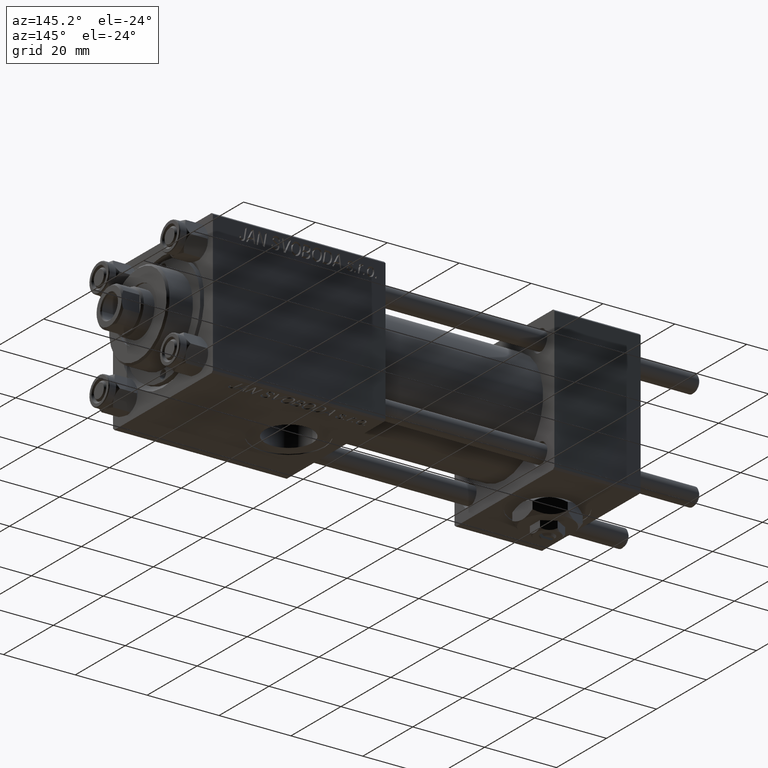
[diagram: clean part render]
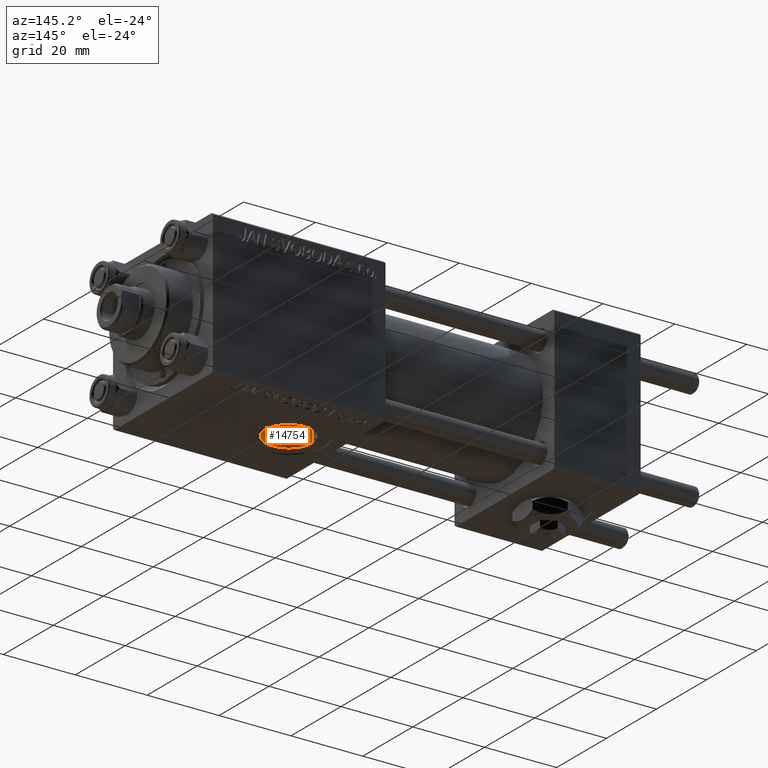
[diagram: same view with one face highlighted and labeled with its STEP entity id]
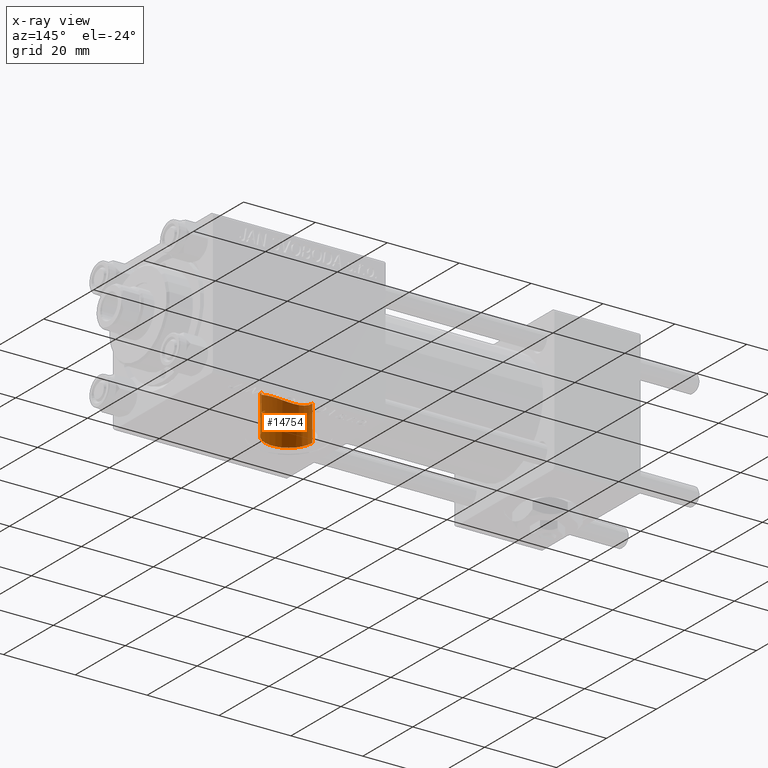
[diagram: x-ray of the same camera — body ghosted, the highlighted face saturated]
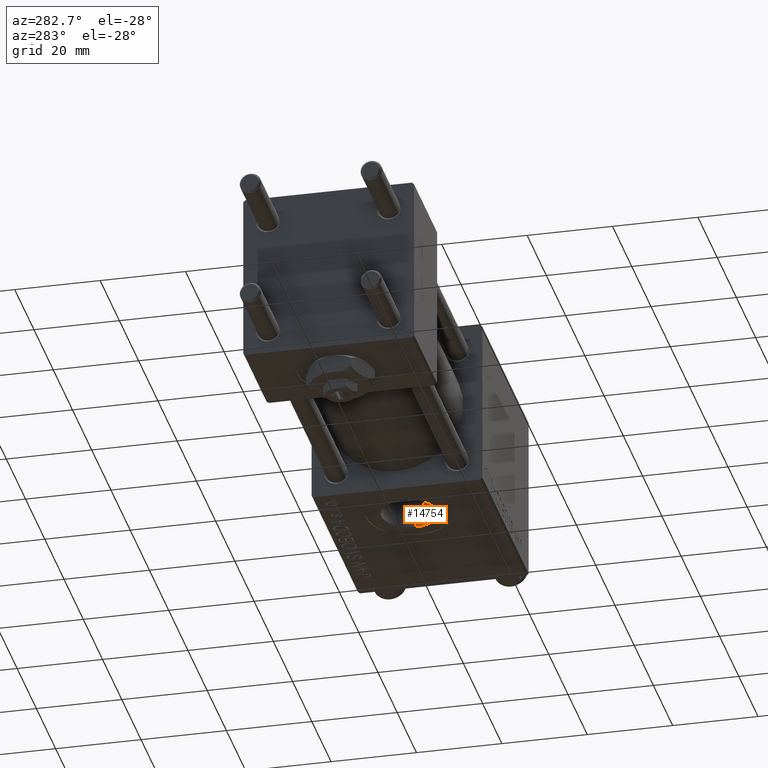
[diagram: same view with one face highlighted and labeled with its STEP entity id]
A machine part, auxiliary view. The second image highlights one B-rep face of the part: STEP entity #14754.
The next image is the same camera in x-ray: the body ghosted, the highlighted face saturated — about 34% of this face is hidden behind the body in this view.
A second angle (auxiliary view) of the same face is appended — the face is thin or edge-on in the first view.
In plain terms, the highlighted cylindrical surface (edge-blend (fillet) strip) has radius 6.58 mm, axis along (-0, -0, -1).
Its self-contained STEP definition (entity closure, byte-faithful):
#2033 = DIRECTION ( 'NONE',  ( -1.000000000000000000, 0.000000000000000000, 0.000000000000000000 ) ) ;
#2113 = CARTESIAN_POINT ( 'NONE',  ( 90.58000000000001251, -7.257782860942566163E-20, -15.00000000000000000 ) ) ;
#2136 = CARTESIAN_POINT ( 'NONE',  ( 77.72176091215176541, -1.979962360784272679, -9.803986523179803569 ) ) ;
#2642 = CARTESIAN_POINT ( 'NONE',  ( 78.57747487202725267, -3.732231677598019548, -9.278942221028561477 ) ) ;
#3174 = CARTESIAN_POINT ( 'NONE',  ( 90.24272049221688974, -2.089073955465625687, -9.781269300433365288 ) ) ;
#3649 = CARTESIAN_POINT ( 'NONE',  ( 90.58000000000001251, -7.257782860942566163E-20, -15.00000000000000000 ) ) ;
#4583 = CARTESIAN_POINT ( 'NONE',  ( 77.42000000000000171, 0.000000000000000000, -9.999999999999998224 ) ) ;
#6341 = CARTESIAN_POINT ( 'NONE',  ( 90.30000000000001137, -1.899052395275084182, -9.818024241159722720 ) ) ;
#6574 = CARTESIAN_POINT ( 'NONE',  ( 90.55605924908620352, -0.6456608678131530166, -14.98945420583751442 ) ) ;
#6597 = CARTESIAN_POINT ( 'NONE',  ( 89.01477521410780014, -4.277052797622629576, -9.045220875054063470 ) ) ;
#6849 = CARTESIAN_POINT ( 'NONE',  ( 80.16581142159246554, -5.361070548464908825, -8.446109571687934192 ) ) ;
#7114 = CARTESIAN_POINT ( 'NONE',  ( 84.64469905149260853, -6.560781194899956148, -7.546955409918134627 ) ) ;
#7179 = CARTESIAN_POINT ( 'NONE',  ( 90.30000000000001137, -1.899052395275083960, -14.87930105885353527 ) ) ;
#7379 = CARTESIAN_POINT ( 'NONE',  ( 77.41999999999997328, -0.4089825204442225637, -9.999999999999996447 ) ) ;
#7956 = VECTOR ( 'NONE', #43130, 1000.000000000000000 ) ;
#10295 = CARTESIAN_POINT ( 'NONE',  ( 81.49732699703456262, -6.098275338325199080, -7.927023205165085962 ) ) ;
#10399 = CARTESIAN_POINT ( 'NONE',  ( 90.58000000000001251, 8.058175938389587461E-16, 20.00100000000001543 ) ) ;
#11059 = CARTESIAN_POINT ( 'NONE',  ( 85.04275180462654760, -6.509310479254390991, -7.592233146943127231 ) ) ;
#11328 = CARTESIAN_POINT ( 'NONE',  ( 78.80454108519522549, -4.042343221862479297, -9.148102716580911675 ) ) ;
#12808 = CARTESIAN_POINT ( 'NONE',  ( 90.58000000000001251, 8.058175938389587461E-16, -19.80000000000000071 ) ) ;
#13419 = VECTOR ( 'NONE', #23259, 1000.000000000000000 ) ;
#14238 = VERTEX_POINT ( 'NONE', #3649 ) ;
#14491 = CARTESIAN_POINT ( 'NONE',  ( 89.47431374786756919, -3.670563999113719333, -9.307854814111337305 ) ) ;
#14511 = VERTEX_POINT ( 'NONE', #4583 ) ;
#14733 = CARTESIAN_POINT ( 'NONE',  ( 90.30000000000001137, -1.899052395275083960, -14.87930105885353527 ) ) ;
#14754 = ADVANCED_FACE ( 'NONE', ( #19250 ), #27397, .F. ) ;
#14759 = CARTESIAN_POINT ( 'NONE',  ( 77.42000000000000171, 0.000000000000000000, -9.999999999999998224 ) ) ;
#15012 = EDGE_CURVE ( 'NONE', #14238, #37321, #21676, .T. ) ;
#15014 = CARTESIAN_POINT ( 'NONE',  ( 82.24461344864745627, -6.353813997681084125, -7.723710680762389202 ) ) ;
#15244 = CARTESIAN_POINT ( 'NONE',  ( 90.57999999999999829, -0.3230844264531260723, -14.99999999999999822 ) ) ;
#15266 = CARTESIAN_POINT ( 'NONE',  ( 78.92386766466023573, -4.191099799210166843, -9.080738098486468957 ) ) ;
#16330 = LINE ( 'NONE', #40997, #34257 ) ;
#16643 = CARTESIAN_POINT ( 'NONE',  ( 90.30000000000001137, -1.899052395275084182, -9.818024241159722720 ) ) ;
#16849 = DIRECTION ( 'NONE',  ( -0.000000000000000000, -0.000000000000000000, -1.000000000000000000 ) ) ;
#17237 = CIRCLE ( 'NONE', #28100, 6.580000000000002736 ) ;
#17428 = EDGE_CURVE ( 'NONE', #47250, #19859, #17237, .T. ) ;
#18161 = AXIS2_PLACEMENT_3D ( 'NONE', #23444, #39444, #42615 ) ;
#18187 = CARTESIAN_POINT ( 'NONE',  ( 77.99717122569160210, -2.723689127457842307, -9.629410992149365356 ) ) ;
#18439 = CARTESIAN_POINT ( 'NONE',  ( 81.14631839932697233, -5.941174856932563308, -8.046936179836331249 ) ) ;
#18689 = CARTESIAN_POINT ( 'NONE',  ( 87.26223207496281020, -5.727067289445463061, -8.201372710756398732 ) ) ;
#18954 = CARTESIAN_POINT ( 'NONE',  ( 78.16876630683161409, -3.072987604056210298, -9.522662785420317633 ) ) ;
#19215 = CARTESIAN_POINT ( 'NONE',  ( 83.42494903835357434, -6.567069818750603361, -7.541861213357049287 ) ) ;
#19249 = CARTESIAN_POINT ( 'NONE',  ( 77.42000000000000171, 0.000000000000000000, 20.00100000000001543 ) ) ;
#19250 = FACE_OUTER_BOUND ( 'NONE', #19393, .T. ) ;
#19393 = EDGE_LOOP ( 'NONE', ( #43304, #43487, #45780, #21508, #36477, #34003 ) ) ;
#19752 = B_SPLINE_CURVE_WITH_KNOTS ( 'NONE', 3,
 ( #14759, #7379, #22629, #46525, #26832, #2136, #30256, #18187, #18954, #43095, #2642, #11328, #15266, #47036, #34183, #6849, #31292, #18439, #10295, #15014, #31035, #19215, #22885, #7114, #11059, #38630, #34437, #50453, #18689, #34686, #50209, #27086, #6597, #14491, #30779, #23149, #39161, #22378, #3174, #6341 ),
 .UNSPECIFIED., .F., .F.,
 ( 4, 2, 2, 2, 2, 2, 2, 2, 2, 2, 2, 2, 2, 2, 2, 2, 2, 2, 2, 4 ),
 ( 0.000000000000000000, 0.001207435871150904210, 0.001811153806726353063, 0.002414871742301801915, 0.003622307613452698319, 0.004226025549028158447, 0.004829743484603617708, 0.006037179355754564852, 0.007244615226905511997, 0.008452051098056459141, 0.009659486969207405418, 0.01086692284035835170, 0.01207435871150929797, 0.01328179458266024598, 0.01448923045381119226, 0.01569666632496213854, 0.01690410219611308829, 0.01811153806726403456, 0.01871525600283950597, 0.01931897393841498084 ),
 .UNSPECIFIED. ) ;
#19859 = VERTEX_POINT ( 'NONE', #27366 ) ;
#21508 = ORIENTED_EDGE ( 'NONE', *, *, #29720, .F. ) ;
#21676 = B_SPLINE_CURVE_WITH_KNOTS ( 'NONE', 3,
 ( #2113, #15244, #6574, #47274, #31266, #14733 ),
 .UNSPECIFIED., .F., .F.,
 ( 4, 2, 4 ),
 ( 0.001923267627920477972, 0.002881828648807242647, 0.003840389669694007756 ),
 .UNSPECIFIED. ) ;
#22023 = DIRECTION ( 'NONE',  ( 0.000000000000000000, 0.000000000000000000, -1.000000000000000000 ) ) ;
#22378 = CARTESIAN_POINT ( 'NONE',  ( 90.17715857919660039, -2.275530276277319963, -9.739487072321779237 ) ) ;
#22629 = CARTESIAN_POINT ( 'NONE',  ( 77.45778208449348767, -0.8097904187399019849, -9.975025740671780383 ) ) ;
#22731 = LINE ( 'NONE', #10399, #13419 ) ;
#22885 = CARTESIAN_POINT ( 'NONE',  ( 83.83756153888683116, -6.590379389739220883, -7.521122612080321623 ) ) ;
#23149 = CARTESIAN_POINT ( 'NONE',  ( 89.94736065180131845, -2.822016436117200655, -9.595297147451772091 ) ) ;
#23259 = DIRECTION ( 'NONE',  ( -0.000000000000000000, -0.000000000000000000, -1.000000000000000000 ) ) ;
#23444 = CARTESIAN_POINT ( 'NONE',  ( 84.00000000000000000, 0.000000000000000000, 20.00100000000001543 ) ) ;
#26832 = CARTESIAN_POINT ( 'NONE',  ( 77.61293362106091820, -1.594340009324778373, -9.874030718580932842 ) ) ;
#26864 = LINE ( 'NONE', #19249, #7956 ) ;
#27086 = CARTESIAN_POINT ( 'NONE',  ( 88.75915897580502190, -4.559879919589097774, -8.904799548505719642 ) ) ;
#27366 = CARTESIAN_POINT ( 'NONE',  ( 77.42000000000000171, 0.000000000000000000, -19.80000000000000071 ) ) ;
#27397 = CYLINDRICAL_SURFACE ( 'NONE', #18161, 6.580000000000002736 ) ;
#28100 = AXIS2_PLACEMENT_3D ( 'NONE', #45675, #22023, #2033 ) ;
#29720 = EDGE_CURVE ( 'NONE', #14511, #19859, #26864, .T. ) ;
#30256 = CARTESIAN_POINT ( 'NONE',  ( 77.78512113935883576, -2.170412331039792697, -9.763468643005937864 ) ) ;
#30779 = CARTESIAN_POINT ( 'NONE',  ( 89.67936800864498537, -3.345905105590945894, -9.430744163576235906 ) ) ;
#31035 = CARTESIAN_POINT ( 'NONE',  ( 82.63201366230444478, -6.448697774955339135, -7.643322155527048523 ) ) ;
#31266 = CARTESIAN_POINT ( 'NONE',  ( 90.39284622331618380, -1.591040247560122856, -14.91861279833500120 ) ) ;
#31292 = CARTESIAN_POINT ( 'NONE',  ( 80.48078488851999168, -5.572807403616068633, -8.306296298905337494 ) ) ;
#33559 = EDGE_CURVE ( 'NONE', #14511, #36635, #19752, .T. ) ;
#34003 = ORIENTED_EDGE ( 'NONE', *, *, #41669, .T. ) ;
#34183 = CARTESIAN_POINT ( 'NONE',  ( 79.57166329560423890, -4.881794087516402314, -8.731891594017090696 ) ) ;
#34257 = VECTOR ( 'NONE', #16849, 1000.000000000000000 ) ;
#34437 = CARTESIAN_POINT ( 'NONE',  ( 86.20234978864991149, -6.212675475025438487, -7.838295680113840369 ) ) ;
#34686 = CARTESIAN_POINT ( 'NONE',  ( 87.90122207688145295, -5.312431096551302190, -8.475841546594098830 ) ) ;
#36477 = ORIENTED_EDGE ( 'NONE', *, *, #33559, .T. ) ;
#36635 = VERTEX_POINT ( 'NONE', #16643 ) ;
#37321 = VERTEX_POINT ( 'NONE', #7179 ) ;
#38630 = CARTESIAN_POINT ( 'NONE',  ( 85.82847483828810198, -6.333650922424628682, -7.739379372129438828 ) ) ;
#39161 = CARTESIAN_POINT ( 'NONE',  ( 90.02972318014838038, -2.641545858314484629, -9.646651333421326413 ) ) ;
#39444 = DIRECTION ( 'NONE',  ( -0.000000000000000000, -0.000000000000000000, -1.000000000000000000 ) ) ;
#40997 = CARTESIAN_POINT ( 'NONE',  ( 90.30000000000001137, -1.899052395275083960, 20.00100000000001543 ) ) ;
#41669 = EDGE_CURVE ( 'NONE', #36635, #37321, #16330, .T. ) ;
#42615 = DIRECTION ( 'NONE',  ( -1.000000000000000000, 0.000000000000000000, 0.000000000000000000 ) ) ;
#43095 = CARTESIAN_POINT ( 'NONE',  ( 78.46949458725291038, -3.570356379877417385, -9.342571656430930460 ) ) ;
#43130 = DIRECTION ( 'NONE',  ( -0.000000000000000000, -0.000000000000000000, -1.000000000000000000 ) ) ;
#43304 = ORIENTED_EDGE ( 'NONE', *, *, #15012, .F. ) ;
#43487 = ORIENTED_EDGE ( 'NONE', *, *, #44704, .T. ) ;
#44704 = EDGE_CURVE ( 'NONE', #14238, #47250, #22731, .T. ) ;
#45675 = CARTESIAN_POINT ( 'NONE',  ( 84.00000000000000000, 0.000000000000000000, -19.80000000000000071 ) ) ;
#45780 = ORIENTED_EDGE ( 'NONE', *, *, #17428, .T. ) ;
#46525 = CARTESIAN_POINT ( 'NONE',  ( 77.56747151553273056, -1.399632537697562462, -9.903547522062748243 ) ) ;
#47036 = CARTESIAN_POINT ( 'NONE',  ( 79.29897247352765532, -4.619619924478203465, -8.874660529526549269 ) ) ;
#47250 = VERTEX_POINT ( 'NONE', #12808 ) ;
#47274 = CARTESIAN_POINT ( 'NONE',  ( 90.46247493449305921, -1.278752734035207617, -14.94875937294873225 ) ) ;
#50209 = CARTESIAN_POINT ( 'NONE',  ( 88.19997335854037601, -5.079598687456339690, -8.618911593381810121 ) ) ;
#50453 = CARTESIAN_POINT ( 'NONE',  ( 86.91892751758524582, -5.909952901388694890, -8.068994511724573826 ) ) ;